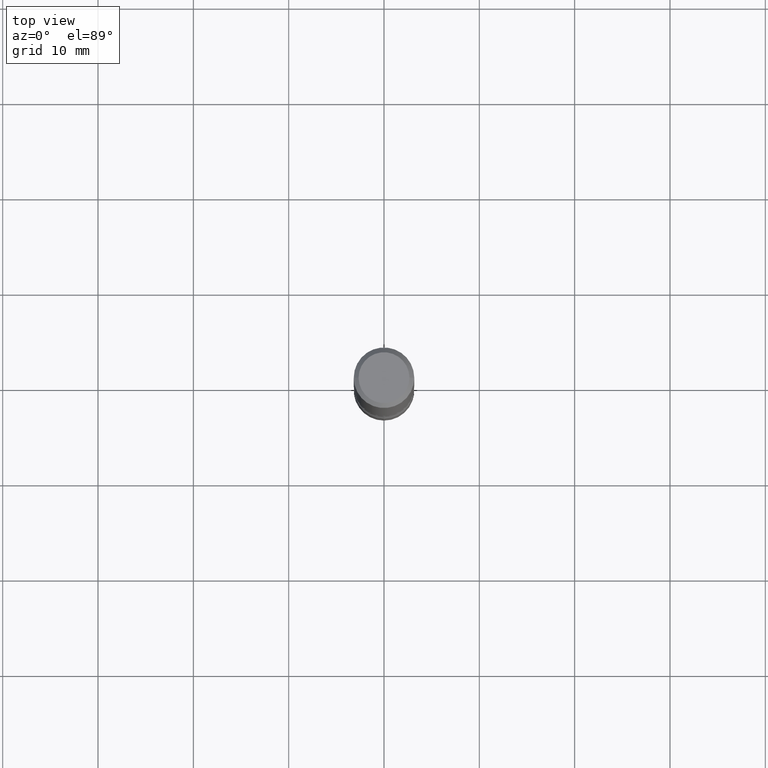
[diagram: clean part render]
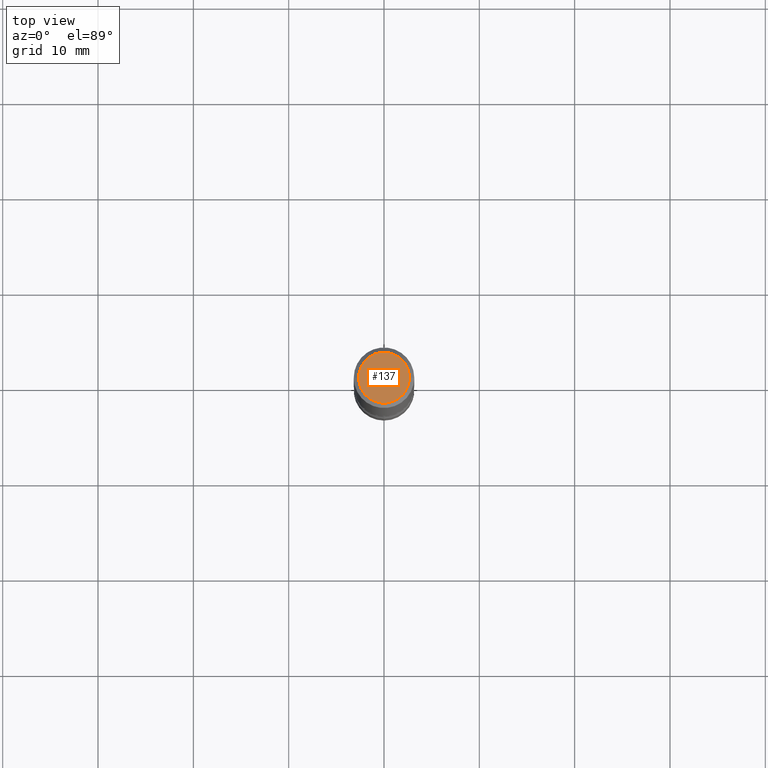
[diagram: same view with one face highlighted and labeled with its STEP entity id]
A machine part, top view. The second image highlights one B-rep face of the part: STEP entity #137.
In plain terms, the highlighted planar face has unit normal (0, -0, -1).
Its self-contained STEP definition (entity closure, byte-faithful):
#14 = EDGE_CURVE ( 'NONE', #36, #79, #452, .T. ) ;
#35 = CARTESIAN_POINT ( 'NONE',  ( 7.332110811570563480E-16, 0.1049999999999997741, -3.666055405785295052E-16 ) ) ;
#36 = VERTEX_POINT ( 'NONE', #181 ) ;
#79 = VERTEX_POINT ( 'NONE', #309 ) ;
#87 = CARTESIAN_POINT ( 'NONE',  ( 0.000000000000000000, 0.000000000000000000, 0.000000000000000000 ) ) ;
#134 = DIRECTION ( 'NONE',  ( -2.445468806185136597E-29, 3.491481338843145583E-15, 1.000000000000000000 ) ) ;
#137 = ADVANCED_FACE ( 'NONE', ( #497 ), #312, .F. ) ;
#165 = DIRECTION ( 'NONE',  ( 1.000000000000000000, -6.982962677686265922E-15, 4.876176775795935232E-29 ) ) ;
#181 = CARTESIAN_POINT ( 'NONE',  ( -0.1049999999999997741, 7.681258945454875041E-16, -5.249639473182155366E-30 ) ) ;
#191 = ORIENTED_EDGE ( 'NONE', *, *, #319, .T. ) ;
#194 = ORIENTED_EDGE ( 'NONE', *, *, #14, .T. ) ;
#220 = DIRECTION ( 'NONE',  ( 1.000000000000000000, -6.982962677686265922E-15, 4.876176775795935232E-29 ) ) ;
#242 = EDGE_LOOP ( 'NONE', ( #194, #191 ) ) ;
#309 = CARTESIAN_POINT ( 'NONE',  ( 0.1049999999999997741, -8.238720831321559881E-16, 5.444276250344138855E-30 ) ) ;
#312 = PLANE ( 'NONE',  #322 ) ;
#319 = EDGE_CURVE ( 'NONE', #79, #36, #506, .T. ) ;
#322 = AXIS2_PLACEMENT_3D ( 'NONE', #35, #422, #455 ) ;
#390 = AXIS2_PLACEMENT_3D ( 'NONE', #87, #480, #165 ) ;
#400 = AXIS2_PLACEMENT_3D ( 'NONE', #486, #134, #220 ) ;
#422 = DIRECTION ( 'NONE',  ( 2.438088387897960049E-29, -3.491481338843145188E-15, -1.000000000000000000 ) ) ;
#452 = CIRCLE ( 'NONE', #400, 0.1049999999999997741 ) ;
#455 = DIRECTION ( 'NONE',  ( -1.000000000000000000, 6.982962677686265922E-15, -4.876176775795935793E-29 ) ) ;
#480 = DIRECTION ( 'NONE',  ( -2.445468806185136597E-29, 3.491481338843145583E-15, 1.000000000000000000 ) ) ;
#486 = CARTESIAN_POINT ( 'NONE',  ( 0.000000000000000000, 0.000000000000000000, 0.000000000000000000 ) ) ;
#497 = FACE_OUTER_BOUND ( 'NONE', #242, .T. ) ;
#506 = CIRCLE ( 'NONE', #390, 0.1049999999999997741 ) ;